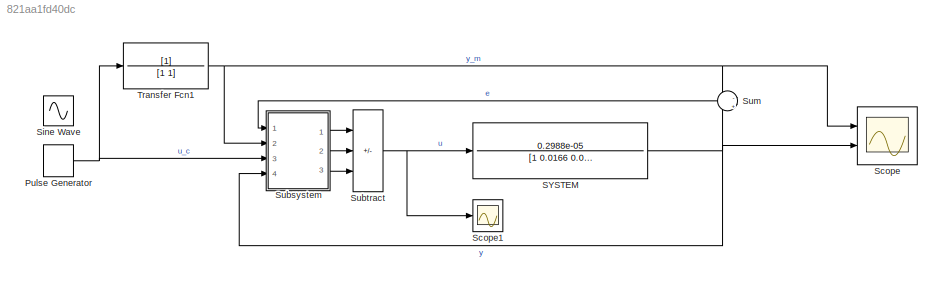
MODEL slx_821aa1fd40dc
KIND model
CONFIG AbsTol = auto
CONFIG EnableMultiTasking = off
CONFIG FixedStep = auto
CONFIG MaxStep = 0.01
CONFIG MinStep = 0.001
CONFIG RelTol = 1e-3
CONFIG SampleTimeConstraint = Unconstrained
CONFIG Solver = ode45
CONFIG SolverName = ode45
CONFIG StartTime = 0.0
CONFIG StopTime = 2000
WORKSPACE source: MAT-file member
WORKSPACE a = -1
BLOCK [DiscretePulseGenerator] Pulse Generator
  Amplitude = 50
  Period = 200
  Ports = [0, 1]
  PulseType = Time based
  PulseWidth = 50
  VectorParams1D = off
BLOCK [TransferFcn] SYSTEM
  Denominator = [1 0.0166 0.00001]
  Numerator = 0.2988e-05
BLOCK [Scope] Scope
  Floating = off
  NumInputPorts = 2
  Ports = [2]
  ScopeSpecificationString = Simulink.scopes.TimeScopeBlockCfg('CurrentConfiguration', extmgr.ConfigurationSet(extmgr.Configuration('Core','General UI',true),extmgr.Configuration('Core','Source UI',true),extmgr.Configuration('Sources','WiredSimulink',true),extmgr.Configuration('Visuals','Time Domain',true,'SerializedDisplays',{struct('MinYLimReal','-268.34677','MaxYLimReal','165.88241','YLabelReal','','MinYLimMag',' 0.00000',...<+1415ch>
BLOCK [Scope] Scope1
  Floating = off
  NumInputPorts = 1
  Ports = [1]
  ScopeSpecificationString = Simulink.scopes.TimeScopeBlockCfg('CurrentConfiguration', extmgr.ConfigurationSet(extmgr.Configuration('Core','General UI',true),extmgr.Configuration('Core','Source UI',true),extmgr.Configuration('Sources','WiredSimulink',true,'DataLoggingVariableName','ScopeData1'),extmgr.Configuration('Visuals','Time Domain',true,'SerializedDisplays',{struct('MinYLimReal','-2639063.16541','MaxYLimReal','2611815....<+1406ch>
BLOCK [Sin] Sine Wave
  Amplitude = 10
  Frequency = 0.01
  Ports = [0, 1]
  SampleTime = 0
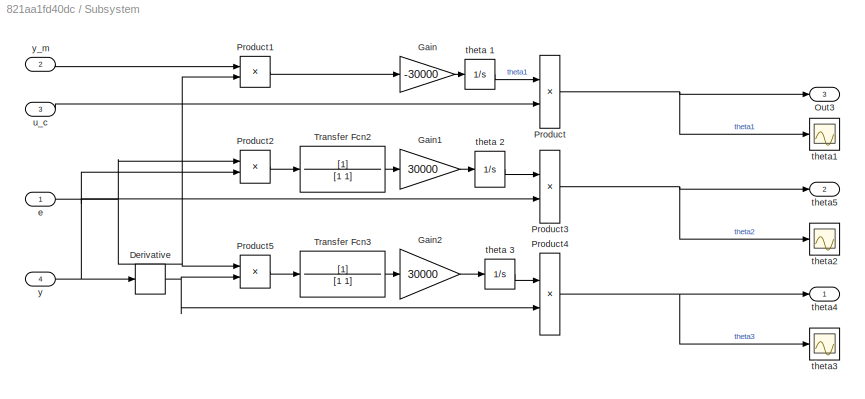
BLOCK [SubSystem] Subsystem
  Ports = [4, 3]
  RequestExecContextInheritance = off
BLOCK [Derivative] Subsystem/Derivative
BLOCK [Gain] Subsystem/Gain
  Gain = -30000
BLOCK [Gain] Subsystem/Gain1
  Gain = 30000
BLOCK [Gain] Subsystem/Gain2
  Gain = 30000
BLOCK [Outport] Subsystem/Out3
  Port = 3
BLOCK [Product] Subsystem/Product
  Ports = [2, 1]
BLOCK [Product] Subsystem/Product1
  Ports = [2, 1]
BLOCK [Product] Subsystem/Product2
  Ports = [2, 1]
BLOCK [Product] Subsystem/Product3
  Ports = [2, 1]
BLOCK [Product] Subsystem/Product4
  Ports = [2, 1]
BLOCK [Product] Subsystem/Product5
  Ports = [2, 1]
BLOCK [TransferFcn] Subsystem/Transfer Fcn2
BLOCK [TransferFcn] Subsystem/Transfer Fcn3
BLOCK [Inport] Subsystem/e
BLOCK [Integrator] Subsystem/theta 1
  Ports = [1, 1]
BLOCK [Integrator] Subsystem/theta 2
  Ports = [1, 1]
BLOCK [Integrator] Subsystem/theta 3
  Ports = [1, 1]
BLOCK [Scope] Subsystem/theta1
  Floating = off
  NumInputPorts = 1
  Ports = [1]
  ScopeSpecificationString = Simulink.scopes.TimeScopeBlockCfg('CurrentConfiguration', extmgr.ConfigurationSet(extmgr.Configuration('Core','General UI',true),extmgr.Configuration('Core','Source UI',true),extmgr.Configuration('Sources','WiredSimulink',true,'DataLoggingVariableName','ScopeData2'),extmgr.Configuration('Visuals','Time Domain',true,'SerializedDisplays',{struct('MinYLimReal','-3784.15867','MaxYLimReal','24561.62296...<+1443ch>
BLOCK [Scope] Subsystem/theta2
  Floating = off
  NumInputPorts = 1
  Ports = [1]
  ScopeSpecificationString = Simulink.scopes.TimeScopeBlockCfg('CurrentConfiguration', extmgr.ConfigurationSet(extmgr.Configuration('Core','General UI',true),extmgr.Configuration('Core','Source UI',true),extmgr.Configuration('Sources','WiredSimulink',true,'DataLoggingVariableName','ScopeData4'),extmgr.Configuration('Visuals','Time Domain',true,'SerializedDisplays',{struct('MinYLimReal','-4284.54058','MaxYLimReal','4024.49488'...<+1441ch>
BLOCK [Scope] Subsystem/theta3
  Floating = off
  NumInputPorts = 1
  Ports = [1]
  ScopeSpecificationString = Simulink.scopes.TimeScopeBlockCfg('CurrentConfiguration', extmgr.ConfigurationSet(extmgr.Configuration('Core','General UI',true),extmgr.Configuration('Core','Source UI',true),extmgr.Configuration('Sources','WiredSimulink',true,'DataLoggingVariableName','ScopeData5'),extmgr.Configuration('Visuals','Time Domain',true,'SerializedDisplays',{struct('MinYLimReal','-388321.94857','MaxYLimReal','462713.20...<+1455ch>
BLOCK [Outport] Subsystem/theta4
BLOCK [Outport] Subsystem/theta5
  Port = 2
BLOCK [Inport] Subsystem/u_c
  Port = 3
BLOCK [Inport] Subsystem/y
  Port = 4
BLOCK [Inport] Subsystem/y_m
  Port = 2
BLOCK [Sum] Subtract
  IconShape = rectangular
  Inputs = --+
  Ports = [3, 1]
BLOCK [Sum] Sum
  Inputs = -|+
  Ports = [2, 1]
BLOCK [TransferFcn] Transfer Fcn1
NET Pulse Generator:1 -> Subsystem:3, Transfer Fcn1:1
NET SYSTEM:1 -> Scope:2, Subsystem:4, Sum:2
NET Subsystem/Derivative:1 -> Subsystem/Product4:2, Subsystem/Product5:2
LINE Subsystem/Gain1:1 -> Subsystem/theta 2:1
LINE Subsystem/Gain2:1 -> Subsystem/theta 3:1
LINE Subsystem/Gain:1 -> Subsystem/theta 1:1
LINE Subsystem/Product1:1 -> Subsystem/Gain:1
LINE Subsystem/Product2:1 -> Subsystem/Transfer Fcn2:1
NET Subsystem/Product3:1 -> Subsystem/theta2:1, Subsystem/theta5:1
NET Subsystem/Product4:1 -> Subsystem/theta3:1, Subsystem/theta4:1
LINE Subsystem/Product5:1 -> Subsystem/Transfer Fcn3:1
NET Subsystem/Product:1 -> Subsystem/Out3:1, Subsystem/theta1:1
LINE Subsystem/Transfer Fcn2:1 -> Subsystem/Gain1:1
LINE Subsystem/Transfer Fcn3:1 -> Subsystem/Gain2:1
NET Subsystem/e:1 -> Subsystem/Product1:2, Subsystem/Product2:1, Subsystem/Product5:1
LINE Subsystem/theta 1:1 -> Subsystem/Product:1
LINE Subsystem/theta 2:1 -> Subsystem/Product3:1
LINE Subsystem/theta 3:1 -> Subsystem/Product4:1
LINE Subsystem/u_c:1 -> Subsystem/Product:2
NET Subsystem/y:1 -> Subsystem/Derivative:1, Subsystem/Product2:2, Subsystem/Product3:2
LINE Subsystem/y_m:1 -> Subsystem/Product1:1
LINE Subsystem:1 -> Subtract:1
LINE Subsystem:2 -> Subtract:2
LINE Subsystem:3 -> Subtract:3
NET Subtract:1 -> SYSTEM:1, Scope1:1
LINE Sum:1 -> Subsystem:1
NET Transfer Fcn1:1 -> Scope:1, Subsystem:2, Sum:1
note: NET lines group one-source signal fan-out (src -> all destinations, sorted); 1:1 wires keep LINE
